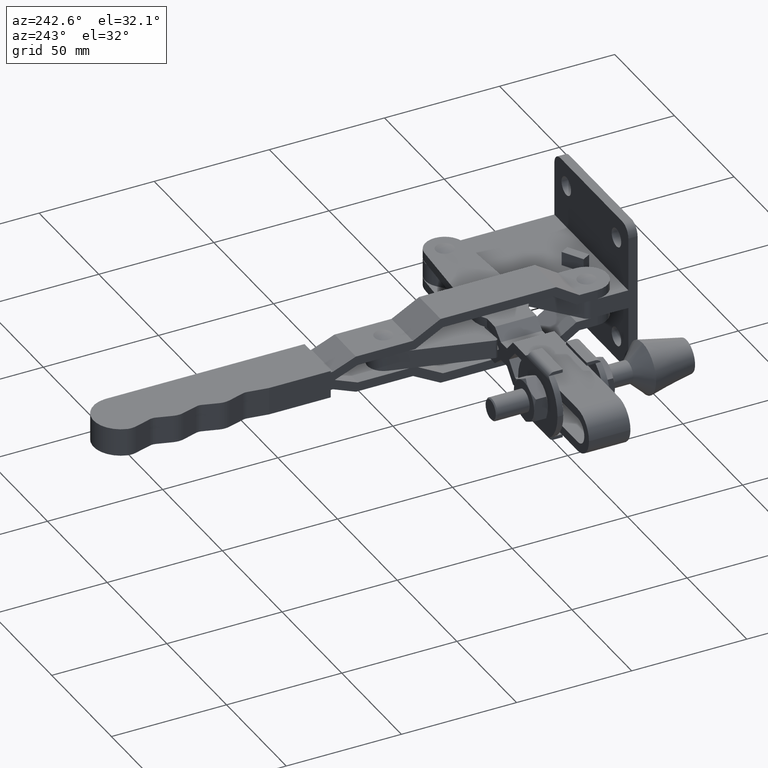
[diagram: clean part render]
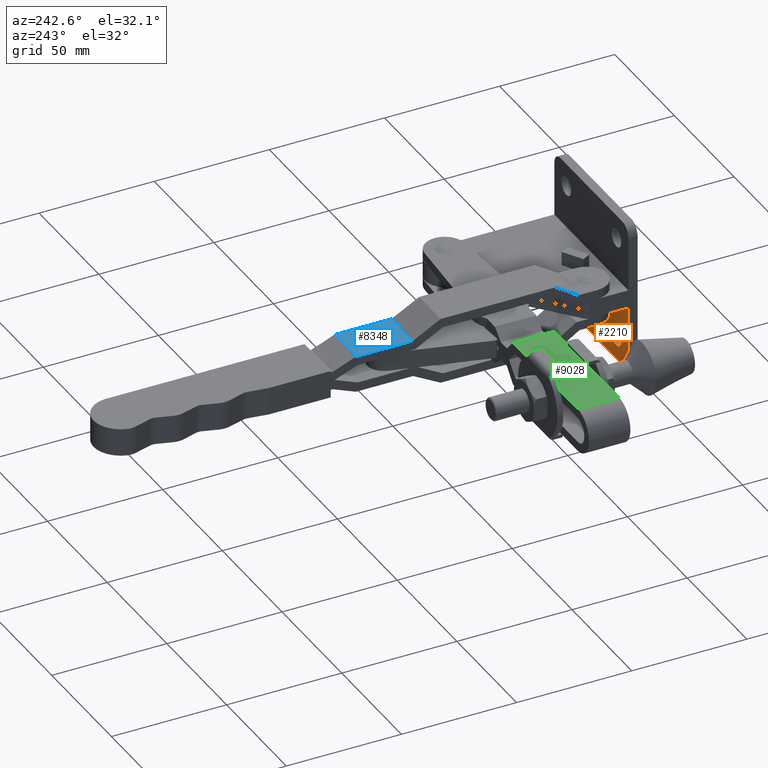
[diagram: same view with three faces highlighted in distinct colors, each labeled with its STEP entity id]
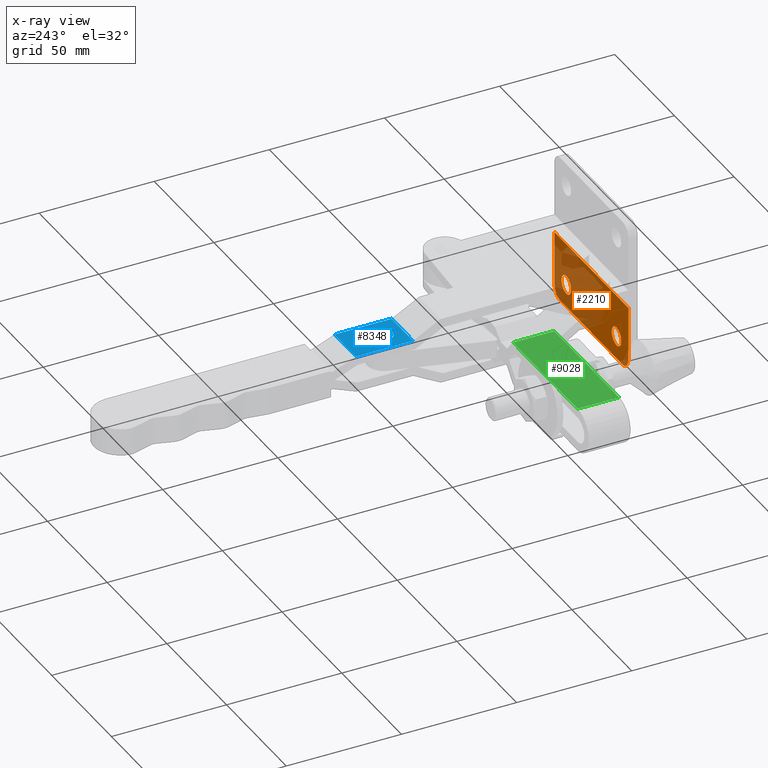
[diagram: x-ray of the same camera — body ghosted, the three highlighted faces saturated]
A machine part, auxiliary view with three faces highlighted in distinct colors.
The next image is the same camera in x-ray (body ghosted, the three faces saturated) — at least one of them is partly hidden behind the body in this view.
Their STEP definitions:

[orange] entity #2210 — the highlighted planar face has unit normal (0, -1, 0).
#2 = AXIS2_PLACEMENT_3D ( 'NONE', #7811, #3097, #8592 ) ;
#10 = VECTOR ( 'NONE', #5538, 1000.000000000000000 ) ;
#18 = CARTESIAN_POINT ( 'NONE',  ( 0.0000000000000000000, 4.000000000000000000, 0.0000000000000000000 ) ) ;
#22 = CIRCLE ( 'NONE', #2503, 5.000000000000008000 ) ;
#65 = CARTESIAN_POINT ( 'NONE',  ( -56.99999999999994300, 4.000000000000000000, -27.49999999999996400 ) ) ;
#508 = VECTOR ( 'NONE', #7028, 1000.000000000000000 ) ;
#516 = VERTEX_POINT ( 'NONE', #7662 ) ;
#541 = VERTEX_POINT ( 'NONE', #2112 ) ;
#586 = LINE ( 'NONE', #10055, #8695 ) ;
#654 = CIRCLE ( 'NONE', #6223, 4.000000000000003600 ) ;
#781 = EDGE_CURVE ( 'NONE', #541, #7343, #8803, .T. ) ;
#861 = DIRECTION ( 'NONE',  ( 0.0000000000000000000, 0.0000000000000000000, 1.000000000000000000 ) ) ;
#1105 = EDGE_LOOP ( 'NONE', ( #6627, #5383, #5217, #8090, #3457, #7941 ) ) ;
#1168 = DIRECTION ( 'NONE',  ( -0.0000000000000000000, 1.000000000000000000, -0.0000000000000000000 ) ) ;
#1186 = EDGE_CURVE ( 'NONE', #3508, #3171, #7017, .T. ) ;
#1649 = CARTESIAN_POINT ( 'NONE',  ( -3.717264591378874700E-016, 4.000000000000003600, -4.000000000000000000 ) ) ;
#1667 = CARTESIAN_POINT ( 'NONE',  ( -56.99999999999994300, 4.000000000000000000, -32.49999999999997200 ) ) ;
#1754 = VERTEX_POINT ( 'NONE', #1667 ) ;
#1829 = CARTESIAN_POINT ( 'NONE',  ( -56.99999999999994300, 4.000000000000000000, -27.49999999999996400 ) ) ;
#2112 = CARTESIAN_POINT ( 'NONE',  ( -61.99999999999994300, 4.000000000000000000, -27.49999999999996400 ) ) ;
#2210 = ADVANCED_FACE ( 'NONE', ( #9348, #3290, #3062 ), #6527, .F. ) ;
#2437 = AXIS2_PLACEMENT_3D ( 'NONE', #1829, #7322, #2621 ) ;
#2503 = AXIS2_PLACEMENT_3D ( 'NONE', #65, #5546, #861 ) ;
#2621 = DIRECTION ( 'NONE',  ( 0.0000000000000000000, 0.0000000000000000000, 1.000000000000000000 ) ) ;
#2972 = CIRCLE ( 'NONE', #2, 4.000000000000003600 ) ;
#3000 = CARTESIAN_POINT ( 'NONE',  ( -51.99999999999993600, 4.000000000000000000, -26.50000000000002100 ) ) ;
#3058 = EDGE_CURVE ( 'NONE', #3171, #1754, #586, .T. ) ;
#3062 = FACE_OUTER_BOUND ( 'NONE', #1105, .T. ) ;
#3097 = DIRECTION ( 'NONE',  ( -0.0000000000000000000, 1.000000000000000000, -0.0000000000000000000 ) ) ;
#3102 = EDGE_CURVE ( 'NONE', #8992, #5142, #9720, .T. ) ;
#3160 = DIRECTION ( 'NONE',  ( -0.0000000000000000000, 1.000000000000000000, -0.0000000000000000000 ) ) ;
#3171 = VERTEX_POINT ( 'NONE', #10152 ) ;
#3290 = FACE_BOUND ( 'NONE', #5059, .T. ) ;
#3457 = ORIENTED_EDGE ( 'NONE', *, *, #8575, .T. ) ;
#3472 = VERTEX_POINT ( 'NONE', #1649 ) ;
#3508 = VERTEX_POINT ( 'NONE', #6365 ) ;
#3803 = CARTESIAN_POINT ( 'NONE',  ( -10.00000000000000900, 4.000000000000000000, -22.50000000000001800 ) ) ;
#4019 = DIRECTION ( 'NONE',  ( -0.0000000000000000000, 1.000000000000000000, -0.0000000000000000000 ) ) ;
#4525 = DIRECTION ( 'NONE',  ( -1.000000000000000000, 0.0000000000000000000, 0.0000000000000000000 ) ) ;
#4587 = DIRECTION ( 'NONE',  ( 0.0000000000000000000, 0.0000000000000000000, 1.000000000000000000 ) ) ;
#4632 = AXIS2_PLACEMENT_3D ( 'NONE', #9519, #1168, #6054 ) ;
#5059 = EDGE_LOOP ( 'NONE', ( #9568, #7321 ) ) ;
#5142 = VERTEX_POINT ( 'NONE', #7728 ) ;
#5217 = ORIENTED_EDGE ( 'NONE', *, *, #1186, .T. ) ;
#5383 = ORIENTED_EDGE ( 'NONE', *, *, #7324, .T. ) ;
#5538 = DIRECTION ( 'NONE',  ( 0.0000000000000000000, 0.0000000000000000000, -1.000000000000000000 ) ) ;
#5546 = DIRECTION ( 'NONE',  ( -0.0000000000000000000, 1.000000000000000000, -0.0000000000000000000 ) ) ;
#5709 = VERTEX_POINT ( 'NONE', #3000 ) ;
#5856 = EDGE_CURVE ( 'NONE', #5142, #8992, #7808, .T. ) ;
#6054 = DIRECTION ( 'NONE',  ( 0.0000000000000000000, 0.0000000000000000000, 1.000000000000000000 ) ) ;
#6163 = AXIS2_PLACEMENT_3D ( 'NONE', #3803, #9329, #4587 ) ;
#6223 = AXIS2_PLACEMENT_3D ( 'NONE', #8764, #4019, #9548 ) ;
#6226 = CARTESIAN_POINT ( 'NONE',  ( -59.00000000000000700, 4.000000000000000000, -4.000000000000000000 ) ) ;
#6354 = CARTESIAN_POINT ( 'NONE',  ( -62.00000000000000000, 4.000000000000000000, -4.000000000000000000 ) ) ;
#6365 = CARTESIAN_POINT ( 'NONE',  ( 0.0000000000000000000, 4.000000000000000000, -27.49999999999996400 ) ) ;
#6527 = PLANE ( 'NONE',  #2437 ) ;
#6627 = ORIENTED_EDGE ( 'NONE', *, *, #8519, .T. ) ;
#6713 = VECTOR ( 'NONE', #6991, 1000.000000000000000 ) ;
#6991 = DIRECTION ( 'NONE',  ( 0.0000000000000000000, 0.0000000000000000000, 1.000000000000000000 ) ) ;
#7017 = CIRCLE ( 'NONE', #4632, 5.000000000000008000 ) ;
#7028 = DIRECTION ( 'NONE',  ( 1.000000000000000000, 0.0000000000000000000, 0.0000000000000000000 ) ) ;
#7082 = CARTESIAN_POINT ( 'NONE',  ( -10.00000000000000900, 4.000000000000000000, -18.50000000000001400 ) ) ;
#7266 = CARTESIAN_POINT ( 'NONE',  ( -61.99999999999994300, 4.000000000000000000, -27.49999999999996400 ) ) ;
#7321 = ORIENTED_EDGE ( 'NONE', *, *, #5856, .F. ) ;
#7322 = DIRECTION ( 'NONE',  ( 0.0000000000000000000, -1.000000000000000000, 0.0000000000000000000 ) ) ;
#7324 = EDGE_CURVE ( 'NONE', #3472, #3508, #8359, .T. ) ;
#7343 = VERTEX_POINT ( 'NONE', #6354 ) ;
#7662 = CARTESIAN_POINT ( 'NONE',  ( -51.99999999999993600, 4.000000000000000000, -18.50000000000001400 ) ) ;
#7728 = CARTESIAN_POINT ( 'NONE',  ( -10.00000000000000900, 4.000000000000000000, -26.50000000000002100 ) ) ;
#7808 = CIRCLE ( 'NONE', #8293, 4.000000000000003600 ) ;
#7811 = CARTESIAN_POINT ( 'NONE',  ( -51.99999999999993600, 4.000000000000000000, -22.50000000000001800 ) ) ;
#7878 = CARTESIAN_POINT ( 'NONE',  ( -10.00000000000000900, 4.000000000000000000, -22.50000000000001800 ) ) ;
#7941 = ORIENTED_EDGE ( 'NONE', *, *, #781, .T. ) ;
#8008 = EDGE_CURVE ( 'NONE', #516, #5709, #654, .T. ) ;
#8090 = ORIENTED_EDGE ( 'NONE', *, *, #3058, .T. ) ;
#8293 = AXIS2_PLACEMENT_3D ( 'NONE', #7878, #3160, #8661 ) ;
#8359 = LINE ( 'NONE', #18, #10 ) ;
#8373 = ORIENTED_EDGE ( 'NONE', *, *, #8895, .F. ) ;
#8519 = EDGE_CURVE ( 'NONE', #7343, #3472, #8615, .T. ) ;
#8575 = EDGE_CURVE ( 'NONE', #1754, #541, #22, .T. ) ;
#8592 = DIRECTION ( 'NONE',  ( 0.0000000000000000000, 0.0000000000000000000, 1.000000000000000000 ) ) ;
#8615 = LINE ( 'NONE', #6226, #508 ) ;
#8661 = DIRECTION ( 'NONE',  ( 0.0000000000000000000, 0.0000000000000000000, 1.000000000000000000 ) ) ;
#8695 = VECTOR ( 'NONE', #4525, 1000.000000000000000 ) ;
#8764 = CARTESIAN_POINT ( 'NONE',  ( -51.99999999999993600, 4.000000000000000000, -22.50000000000001800 ) ) ;
#8803 = LINE ( 'NONE', #7266, #6713 ) ;
#8895 = EDGE_CURVE ( 'NONE', #5709, #516, #2972, .T. ) ;
#8992 = VERTEX_POINT ( 'NONE', #7082 ) ;
#9128 = EDGE_LOOP ( 'NONE', ( #9878, #8373 ) ) ;
#9329 = DIRECTION ( 'NONE',  ( -0.0000000000000000000, 1.000000000000000000, -0.0000000000000000000 ) ) ;
#9348 = FACE_BOUND ( 'NONE', #9128, .T. ) ;
#9519 = CARTESIAN_POINT ( 'NONE',  ( -5.000000000000004400, 4.000000000000000000, -27.49999999999996400 ) ) ;
#9548 = DIRECTION ( 'NONE',  ( 0.0000000000000000000, 0.0000000000000000000, 1.000000000000000000 ) ) ;
#9568 = ORIENTED_EDGE ( 'NONE', *, *, #3102, .F. ) ;
#9720 = CIRCLE ( 'NONE', #6163, 4.000000000000003600 ) ;
#9878 = ORIENTED_EDGE ( 'NONE', *, *, #8008, .F. ) ;
#10055 = CARTESIAN_POINT ( 'NONE',  ( -5.000000000000004400, 4.000000000000000000, -32.49999999999997200 ) ) ;
#10152 = CARTESIAN_POINT ( 'NONE',  ( -5.000000000000003600, 4.000000000000000000, -32.49999999999997200 ) ) ;

[blue] entity #8348 — the highlighted planar face has unit normal (-0, -0, 1).
#43 = ORIENTED_EDGE ( 'NONE', *, *, #7942, .T. ) ;
#252 = DIRECTION ( 'NONE',  ( -0.0001251996209484491200, -0.9999999921625274400, -6.717492154794281500E-015 ) ) ;
#299 = VECTOR ( 'NONE', #1744, 1000.000000000000000 ) ;
#546 = CARTESIAN_POINT ( 'NONE',  ( -61.98688272390833700, 122.2714555897230000, 8.000000000000437000 ) ) ;
#642 = CARTESIAN_POINT ( 'NONE',  ( -52.98895739343253600, 105.6999993087347700, 8.000000000001039200 ) ) ;
#803 = CARTESIAN_POINT ( 'NONE',  ( -79.98998209719332000, 97.51712995586382200, 8.000000000000270000 ) ) ;
#911 = EDGE_LOOP ( 'NONE', ( #1703, #5464 ) ) ;
#1428 = DIRECTION ( 'NONE',  ( 1.000000000000000000, 7.075073054288199200E-015, 0.0000000000000000000 ) ) ;
#1445 = VERTEX_POINT ( 'NONE', #4081 ) ;
#1504 = FACE_BOUND ( 'NONE', #911, .T. ) ;
#1587 = DIRECTION ( 'NONE',  ( 0.9999999921625274400, -0.0001251996209484491200, 1.280371171741465600E-017 ) ) ;
#1703 = ORIENTED_EDGE ( 'NONE', *, *, #5693, .F. ) ;
#1744 = DIRECTION ( 'NONE',  ( -0.0001251996209484491200, -0.9999999921625274400, -6.717492154794281500E-015 ) ) ;
#1804 = DIRECTION ( 'NONE',  ( -1.364473908857034200E-017, -6.717490499126266500E-015, 1.000000000000000000 ) ) ;
#1987 = AXIS2_PLACEMENT_3D ( 'NONE', #642, #6114, #1428 ) ;
#2080 = CARTESIAN_POINT ( 'NONE',  ( -79.98688258283382900, 122.2737091829000800, 8.000000000000437000 ) ) ;
#2139 = VERTEX_POINT ( 'NONE', #4009 ) ;
#2388 = LINE ( 'NONE', #4826, #299 ) ;
#2430 = VERTEX_POINT ( 'NONE', #546 ) ;
#2470 = VECTOR ( 'NONE', #5366, 1000.000000000000000 ) ;
#2642 = CIRCLE ( 'NONE', #3868, 3.923009049186604500 ) ;
#3153 = VERTEX_POINT ( 'NONE', #6949 ) ;
#3559 = FACE_OUTER_BOUND ( 'NONE', #9560, .T. ) ;
#3642 = PLANE ( 'NONE',  #5306 ) ;
#3868 = AXIS2_PLACEMENT_3D ( 'NONE', #6494, #1804, #7294 ) ;
#4009 = CARTESIAN_POINT ( 'NONE',  ( -43.98998237934234400, 97.51262276950969000, 8.000000000000271800 ) ) ;
#4081 = CARTESIAN_POINT ( 'NONE',  ( -43.98688286498283900, 122.2692019965459300, 8.000000000000438800 ) ) ;
#4246 = VERTEX_POINT ( 'NONE', #4892 ) ;
#4429 = DIRECTION ( 'NONE',  ( -0.0001251996209484491200, -0.9999999921625274400, -6.717492154794281500E-015 ) ) ;
#4826 = CARTESIAN_POINT ( 'NONE',  ( -43.98688286498283900, 122.2692019965459300, 8.000000000000438800 ) ) ;
#4892 = CARTESIAN_POINT ( 'NONE',  ( -61.98998223826783500, 97.51487636268674900, 8.000000000000271800 ) ) ;
#5272 = VECTOR ( 'NONE', #252, 1000.000000000000000 ) ;
#5306 = AXIS2_PLACEMENT_3D ( 'NONE', #2080, #9164, #4429 ) ;
#5366 = DIRECTION ( 'NONE',  ( 0.9999999921625274400, -0.0001251996209484491200, 1.280371171741465600E-017 ) ) ;
#5464 = ORIENTED_EDGE ( 'NONE', *, *, #6020, .F. ) ;
#5693 = EDGE_CURVE ( 'NONE', #6551, #3153, #8529, .T. ) ;
#5808 = VECTOR ( 'NONE', #1587, 1000.000000000000000 ) ;
#5930 = CARTESIAN_POINT ( 'NONE',  ( -52.98895739343256400, 109.6230083579213800, 8.000000000001065800 ) ) ;
#5965 = EDGE_CURVE ( 'NONE', #1445, #2139, #2388, .T. ) ;
#6020 = EDGE_CURVE ( 'NONE', #3153, #6551, #2642, .T. ) ;
#6114 = DIRECTION ( 'NONE',  ( -1.364473908857034200E-017, -6.717490499126266500E-015, 1.000000000000000000 ) ) ;
#6494 = CARTESIAN_POINT ( 'NONE',  ( -52.98895739343253600, 105.6999993087347700, 8.000000000001039200 ) ) ;
#6551 = VERTEX_POINT ( 'NONE', #5930 ) ;
#6949 = CARTESIAN_POINT ( 'NONE',  ( -52.98895739343250700, 101.7769902595481700, 8.000000000001012500 ) ) ;
#7294 = DIRECTION ( 'NONE',  ( 1.000000000000000000, 7.075073054288199200E-015, 0.0000000000000000000 ) ) ;
#7462 = EDGE_CURVE ( 'NONE', #2430, #4246, #7873, .T. ) ;
#7699 = CARTESIAN_POINT ( 'NONE',  ( -79.98688258283382900, 122.2737091829000800, 8.000000000000437000 ) ) ;
#7873 = LINE ( 'NONE', #9666, #5272 ) ;
#7942 = EDGE_CURVE ( 'NONE', #4246, #2139, #10013, .T. ) ;
#8348 = ADVANCED_FACE ( 'NONE', ( #1504, #3559 ), #3642, .T. ) ;
#8529 = CIRCLE ( 'NONE', #1987, 3.923009049186604500 ) ;
#8735 = LINE ( 'NONE', #7699, #2470 ) ;
#8811 = ORIENTED_EDGE ( 'NONE', *, *, #5965, .F. ) ;
#9164 = DIRECTION ( 'NONE',  ( -1.364473908857034300E-017, -6.717490499126267300E-015, 1.000000000000000000 ) ) ;
#9169 = ORIENTED_EDGE ( 'NONE', *, *, #9409, .F. ) ;
#9405 = ORIENTED_EDGE ( 'NONE', *, *, #7462, .T. ) ;
#9409 = EDGE_CURVE ( 'NONE', #2430, #1445, #8735, .T. ) ;
#9560 = EDGE_LOOP ( 'NONE', ( #9169, #9405, #43, #8811 ) ) ;
#9666 = CARTESIAN_POINT ( 'NONE',  ( -61.98688272390833700, 122.2714555897230000, 8.000000000000437000 ) ) ;
#10013 = LINE ( 'NONE', #803, #5808 ) ;

[green] entity #9028 — the highlighted planar face has unit normal (0, 0, -1).
#198 = DIRECTION ( 'NONE',  ( 0.9999999555588471300, 0.0002981313534467922200, 1.002509867723642000E-016 ) ) ;
#237 = VERTEX_POINT ( 'NONE', #3359 ) ;
#417 = CARTESIAN_POINT ( 'NONE',  ( -82.93395013027344500, 67.49280941645899600, 9.499999999995907300 ) ) ;
#912 = DIRECTION ( 'NONE',  ( -0.9999999555588470200, -0.0002981313534467922200, -1.267055257818476400E-016 ) ) ;
#928 = DIRECTION ( 'NONE',  ( -0.0002981313534467922200, 0.9999999555588470200, 1.439609180863158000E-017 ) ) ;
#1042 = ORIENTED_EDGE ( 'NONE', *, *, #6401, .T. ) ;
#1280 = LINE ( 'NONE', #4080, #9393 ) ;
#1579 = VERTEX_POINT ( 'NONE', #6081 ) ;
#1702 = LINE ( 'NONE', #417, #3502 ) ;
#1760 = CARTESIAN_POINT ( 'NONE',  ( -82.92783396555749700, 46.97781032816924100, 9.499999999995909100 ) ) ;
#1857 = EDGE_LOOP ( 'NONE', ( #9856, #1042, #9684, #3204 ) ) ;
#2472 = EDGE_CURVE ( 'NONE', #237, #1579, #4759, .T. ) ;
#2726 = EDGE_CURVE ( 'NONE', #7181, #1579, #9200, .T. ) ;
#3001 = CARTESIAN_POINT ( 'NONE',  ( -137.1000021184866600, 46.96165990564091400, 9.499999999995900200 ) ) ;
#3204 = ORIENTED_EDGE ( 'NONE', *, *, #2472, .T. ) ;
#3359 = CARTESIAN_POINT ( 'NONE',  ( -82.93320032991954300, 64.97780952822849100, 9.499999999995909100 ) ) ;
#3502 = VECTOR ( 'NONE', #7491, 1000.000000000000100 ) ;
#4080 = CARTESIAN_POINT ( 'NONE',  ( -146.6973106760516400, 46.95879864692404500, 9.499999999995898400 ) ) ;
#4403 = EDGE_CURVE ( 'NONE', #237, #6891, #1702, .T. ) ;
#4759 = LINE ( 'NONE', #7668, #7365 ) ;
#4797 = PLANE ( 'NONE',  #5779 ) ;
#5570 = CARTESIAN_POINT ( 'NONE',  ( -82.93395013027344500, 67.49280941645899600, 9.499999999995907300 ) ) ;
#5595 = DIRECTION ( 'NONE',  ( 1.267012282245727300E-016, 1.443386605874319200E-017, -1.000000000000000000 ) ) ;
#5779 = AXIS2_PLACEMENT_3D ( 'NONE', #5570, #5595, #912 ) ;
#5919 = FACE_OUTER_BOUND ( 'NONE', #1857, .T. ) ;
#6081 = CARTESIAN_POINT ( 'NONE',  ( -137.1053684828487200, 64.96165910570017800, 9.499999999995900200 ) ) ;
#6401 = EDGE_CURVE ( 'NONE', #7181, #6891, #1280, .T. ) ;
#6891 = VERTEX_POINT ( 'NONE', #1760 ) ;
#7110 = VECTOR ( 'NONE', #928, 1000.000000000000100 ) ;
#7181 = VERTEX_POINT ( 'NONE', #3001 ) ;
#7365 = VECTOR ( 'NONE', #8424, 999.9999999999998900 ) ;
#7491 = DIRECTION ( 'NONE',  ( 0.0002981313534467922200, -0.9999999555588470200, -1.439609180863158000E-017 ) ) ;
#7668 = CARTESIAN_POINT ( 'NONE',  ( -146.7026770404136800, 64.95879784698328800, 9.499999999995898400 ) ) ;
#8424 = DIRECTION ( 'NONE',  ( -0.9999999555588471300, -0.0002981313534467922200, -1.002509867723642000E-016 ) ) ;
#8752 = CARTESIAN_POINT ( 'NONE',  ( -137.1611590268700200, 252.0957558616435100, 9.499999999995903700 ) ) ;
#9028 = ADVANCED_FACE ( 'NONE', ( #5919 ), #4797, .F. ) ;
#9200 = LINE ( 'NONE', #8752, #7110 ) ;
#9393 = VECTOR ( 'NONE', #198, 999.9999999999998900 ) ;
#9684 = ORIENTED_EDGE ( 'NONE', *, *, #4403, .F. ) ;
#9856 = ORIENTED_EDGE ( 'NONE', *, *, #2726, .F. ) ;